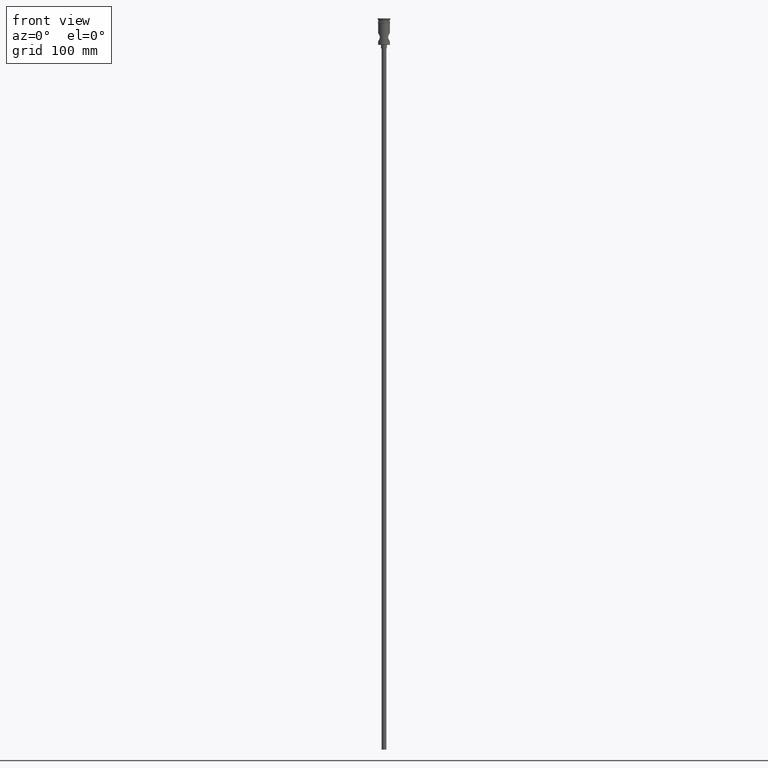
[diagram: clean part render]
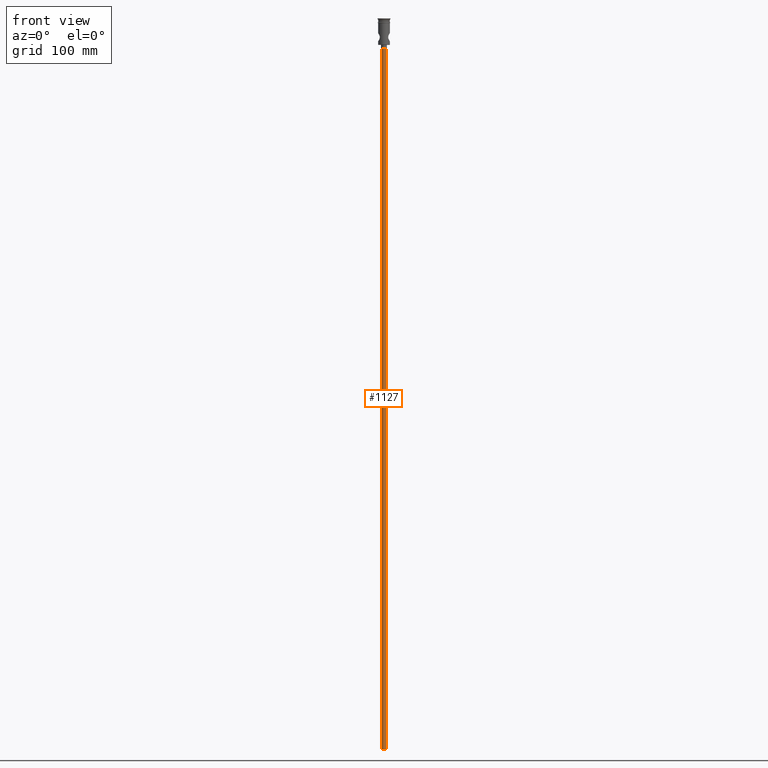
[diagram: same view with one face highlighted and labeled with its STEP entity id]
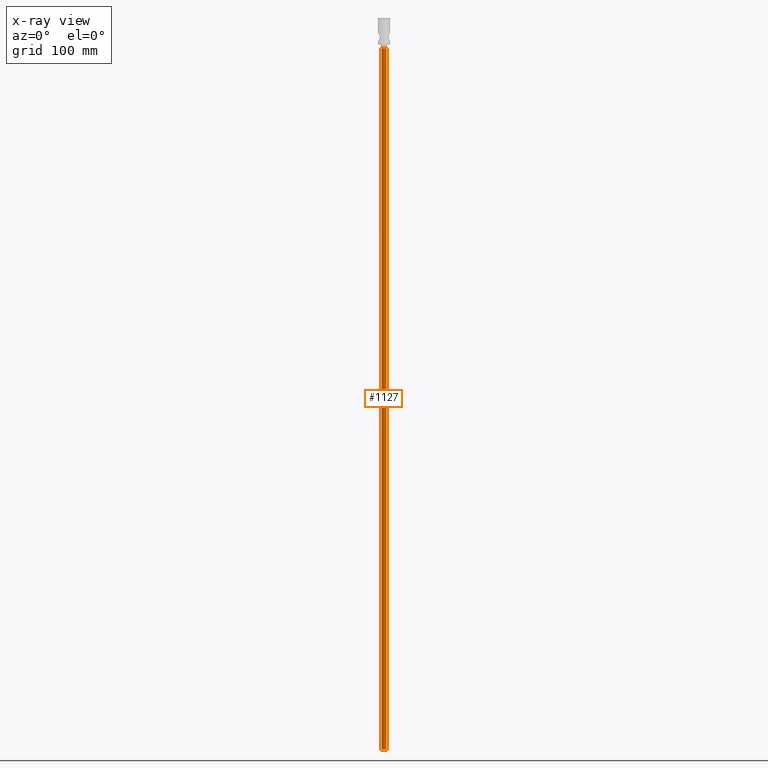
[diagram: x-ray of the same camera — body ghosted, the highlighted face saturated]
A machine part, front view. The second image highlights one B-rep face of the part: STEP entity #1127.
The next image is the same camera in x-ray: the body ghosted, the highlighted face saturated — about 0% of this face is hidden behind the body in this view.
In plain terms, the highlighted cylindrical surface (edge-blend (fillet) strip) has radius 2 mm, axis along (-0, -0, 1).
Its self-contained STEP definition (entity closure, byte-faithful):
#6 = AXIS2_PLACEMENT_3D ( 'NONE', #317, #1090, #1220 ) ;
#25 = CYLINDRICAL_SURFACE ( 'NONE', #707, 2.000000000000000000 ) ;
#26 = DIRECTION ( 'NONE',  ( -1.000000000000000000, 0.000000000000000000, 0.000000000000000000 ) ) ;
#43 = ORIENTED_EDGE ( 'NONE', *, *, #1063, .T. ) ;
#85 = CARTESIAN_POINT ( 'NONE',  ( -2.000000000000000000, 2.449293598294706414E-16, -622.4999999999998863 ) ) ;
#107 = VERTEX_POINT ( 'NONE', #689 ) ;
#116 = CARTESIAN_POINT ( 'NONE',  ( 2.000000000000000000, 0.000000000000000000, -622.4999999999998863 ) ) ;
#136 = DIRECTION ( 'NONE',  ( 1.000000000000000000, 0.000000000000000000, 0.000000000000000000 ) ) ;
#219 = EDGE_CURVE ( 'NONE', #107, #392, #1050, .T. ) ;
#255 = CARTESIAN_POINT ( 'NONE',  ( -2.000000000000000000, 2.449293598294706414E-16, -25.50000000000000000 ) ) ;
#257 = ORIENTED_EDGE ( 'NONE', *, *, #219, .T. ) ;
#317 = CARTESIAN_POINT ( 'NONE',  ( 0.000000000000000000, 0.000000000000000000, -25.50000000000000000 ) ) ;
#330 = DIRECTION ( 'NONE',  ( -0.000000000000000000, -0.000000000000000000, 1.000000000000000000 ) ) ;
#337 = FACE_OUTER_BOUND ( 'NONE', #1444, .T. ) ;
#392 = VERTEX_POINT ( 'NONE', #255 ) ;
#479 = EDGE_CURVE ( 'NONE', #1232, #392, #617, .T. ) ;
#543 = DIRECTION ( 'NONE',  ( -0.000000000000000000, -0.000000000000000000, 1.000000000000000000 ) ) ;
#604 = CARTESIAN_POINT ( 'NONE',  ( -2.000000000000000000, 2.449293598294706414E-16, -622.4999999999998863 ) ) ;
#617 = LINE ( 'NONE', #85, #1289 ) ;
#625 = DIRECTION ( 'NONE',  ( -0.000000000000000000, -0.000000000000000000, 1.000000000000000000 ) ) ;
#665 = EDGE_CURVE ( 'NONE', #1179, #1232, #786, .T. ) ;
#689 = CARTESIAN_POINT ( 'NONE',  ( 2.000000000000000000, 0.000000000000000000, -25.50000000000000000 ) ) ;
#707 = AXIS2_PLACEMENT_3D ( 'NONE', #1240, #543, #136 ) ;
#786 = CIRCLE ( 'NONE', #906, 2.000000000000000000 ) ;
#817 = ORIENTED_EDGE ( 'NONE', *, *, #665, .F. ) ;
#818 = VECTOR ( 'NONE', #330, 1000.000000000000000 ) ;
#906 = AXIS2_PLACEMENT_3D ( 'NONE', #1261, #1165, #26 ) ;
#1001 = CARTESIAN_POINT ( 'NONE',  ( 2.000000000000000000, 0.000000000000000000, -622.4999999999998863 ) ) ;
#1050 = CIRCLE ( 'NONE', #6, 2.000000000000000000 ) ;
#1063 = EDGE_CURVE ( 'NONE', #1179, #107, #1141, .T. ) ;
#1090 = DIRECTION ( 'NONE',  ( 0.000000000000000000, 0.000000000000000000, -1.000000000000000000 ) ) ;
#1127 = ADVANCED_FACE ( 'NONE', ( #337 ), #25, .T. ) ;
#1141 = LINE ( 'NONE', #116, #818 ) ;
#1165 = DIRECTION ( 'NONE',  ( 0.000000000000000000, 0.000000000000000000, -1.000000000000000000 ) ) ;
#1179 = VERTEX_POINT ( 'NONE', #1001 ) ;
#1220 = DIRECTION ( 'NONE',  ( -1.000000000000000000, 0.000000000000000000, 0.000000000000000000 ) ) ;
#1232 = VERTEX_POINT ( 'NONE', #604 ) ;
#1240 = CARTESIAN_POINT ( 'NONE',  ( 0.000000000000000000, 0.000000000000000000, -622.4999999999998863 ) ) ;
#1261 = CARTESIAN_POINT ( 'NONE',  ( 0.000000000000000000, 0.000000000000000000, -622.4999999999998863 ) ) ;
#1289 = VECTOR ( 'NONE', #625, 1000.000000000000000 ) ;
#1420 = ORIENTED_EDGE ( 'NONE', *, *, #479, .F. ) ;
#1444 = EDGE_LOOP ( 'NONE', ( #1420, #817, #43, #257 ) ) ;